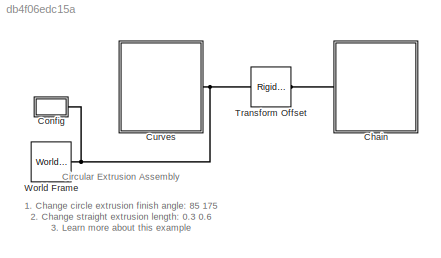
MODEL slx_db4f06edc15a
KIND model
CONFIG AbsTol = auto
CONFIG EnableMultiTasking = on
CONFIG FixedStep = auto
CONFIG MaxStep = auto
CONFIG MinStep = auto
CONFIG RelTol = 1e-3
CONFIG SampleTimeConstraint = Unconstrained
CONFIG Solver = VariableStepAuto
CONFIG SolverName = VariableStepAuto
CONFIG StartTime = 0.0
CONFIG StopTime = 10.0
WORKSPACE source: MATLAB code (in-file)
WORKSPACE circ_or = 0.3
WORKSPACE circ_ir = 0.2
WORKSPACE circ_a1 = 10
WORKSPACE circ_a2 = 85
WORKSPACE circ_arc_rad = 0.25
WORKSPACE circ_arc = 270/2  (= 135)
WORKSPACE circ_density = 7000
WORKSPACE circ_color = [0 0.4 0.6]
WORKSPACE circ_opc = 1
WORKSPACE circ_len = 0.3
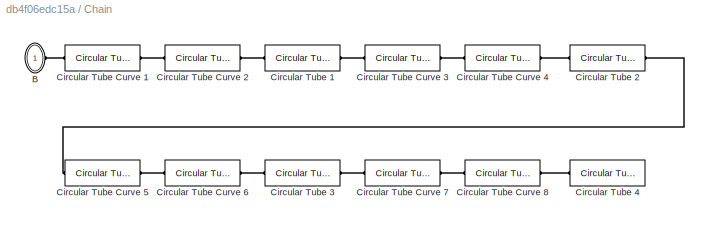
BLOCK [SubSystem] Chain
  Ports = [0, 0, 0, 0, 0, 1]
  RequestExecContextInheritance = off
  Tag = PublishSubsystem
BLOCK [PMIOPort] Chain/B
  Side = Left
BLOCK [Reference] Chain/Circular Tube 1  REF=Multibody_Parts_Lib/Extrusions/Circular Tube
  Ports = [0, 0, 0, 0, 0, 1, 1]
  SourceBlock = Multibody_Parts_Lib/Extrusions/Circular Tube
  SourceProductName = Simscape Multibody Parts Library
  SourceType = Elliptical Tube
BLOCK [Reference] Chain/Circular Tube 2  REF=Multibody_Parts_Lib/Extrusions/Circular Tube
  Ports = [0, 0, 0, 0, 0, 1, 1]
  SourceBlock = Multibody_Parts_Lib/Extrusions/Circular Tube
  SourceProductName = Simscape Multibody Parts Library
  SourceType = Elliptical Tube
BLOCK [Reference] Chain/Circular Tube 3  REF=Multibody_Parts_Lib/Extrusions/Circular Tube
  Ports = [0, 0, 0, 0, 0, 1, 1]
  SourceBlock = Multibody_Parts_Lib/Extrusions/Circular Tube
  SourceProductName = Simscape Multibody Parts Library
  SourceType = Elliptical Tube
BLOCK [Reference] Chain/Circular Tube 4  REF=Multibody_Parts_Lib/Extrusions/Circular Tube
  Ports = [0, 0, 0, 0, 0, 1, 1]
  SourceBlock = Multibody_Parts_Lib/Extrusions/Circular Tube
  SourceProductName = Simscape Multibody Parts Library
  SourceType = Elliptical Tube
BLOCK [Reference] Chain/Circular Tube Curve 1  REF=Multibody_Parts_Lib/Extrusions/Circular Tube Curve
  Ports = [0, 0, 0, 0, 0, 1, 1]
  SourceBlock = Multibody_Parts_Lib/Extrusions/Circular Tube Curve
  SourceProductName = Simscape Multibody Parts Library
  SourceType = Curved Circular Tube
BLOCK [Reference] Chain/Circular Tube Curve 2  REF=Multibody_Parts_Lib/Extrusions/Circular Tube Curve
  Ports = [0, 0, 0, 0, 0, 1, 1]
  SourceBlock = Multibody_Parts_Lib/Extrusions/Circular Tube Curve
  SourceProductName = Simscape Multibody Parts Library
  SourceType = Curved Circular Tube
BLOCK [Reference] Chain/Circular Tube Curve 3  REF=Multibody_Parts_Lib/Extrusions/Circular Tube Curve
  Ports = [0, 0, 0, 0, 0, 1, 1]
  SourceBlock = Multibody_Parts_Lib/Extrusions/Circular Tube Curve
  SourceProductName = Simscape Multibody Parts Library
  SourceType = Curved Circular Tube
BLOCK [Reference] Chain/Circular Tube Curve 4  REF=Multibody_Parts_Lib/Extrusions/Circular Tube Curve
  Ports = [0, 0, 0, 0, 0, 1, 1]
  SourceBlock = Multibody_Parts_Lib/Extrusions/Circular Tube Curve
  SourceProductName = Simscape Multibody Parts Library
  SourceType = Curved Circular Tube
BLOCK [Reference] Chain/Circular Tube Curve 5  REF=Multibody_Parts_Lib/Extrusions/Circular Tube Curve
  Ports = [0, 0, 0, 0, 0, 1, 1]
  SourceBlock = Multibody_Parts_Lib/Extrusions/Circular Tube Curve
  SourceProductName = Simscape Multibody Parts Library
  SourceType = Curved Circular Tube
BLOCK [Reference] Chain/Circular Tube Curve 6  REF=Multibody_Parts_Lib/Extrusions/Circular Tube Curve
  Ports = [0, 0, 0, 0, 0, 1, 1]
  SourceBlock = Multibody_Parts_Lib/Extrusions/Circular Tube Curve
  SourceProductName = Simscape Multibody Parts Library
  SourceType = Curved Circular Tube
BLOCK [Reference] Chain/Circular Tube Curve 7  REF=Multibody_Parts_Lib/Extrusions/Circular Tube Curve
  Ports = [0, 0, 0, 0, 0, 1, 1]
  SourceBlock = Multibody_Parts_Lib/Extrusions/Circular Tube Curve
  SourceProductName = Simscape Multibody Parts Library
  SourceType = Curved Circular Tube
BLOCK [Reference] Chain/Circular Tube Curve 8  REF=Multibody_Parts_Lib/Extrusions/Circular Tube Curve
  Ports = [0, 0, 0, 0, 0, 1, 1]
  SourceBlock = Multibody_Parts_Lib/Extrusions/Circular Tube Curve
  SourceProductName = Simscape Multibody Parts Library
  SourceType = Curved Circular Tube
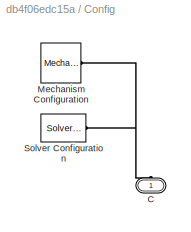
BLOCK [SubSystem] Config
  Ports = [0, 0, 0, 0, 0, 1]
  RequestExecContextInheritance = off
BLOCK [PMIOPort] Config/C
  Side = Left
BLOCK [Reference] Config/Mechanism Configuration  REF=sm_lib/Utilities/Mechanism
Configuration
  Ports = [0, 0, 0, 0, 0, 0, 1]
  SourceBlock = sm_lib/Utilities/Mechanism\nConfiguration
  SourceProductBaseCode = MS
  SourceProductName = Simscape Multibody
  SourceType = Mechanism\nConfiguration
BLOCK [Reference] Config/Solver Configuration  REF=nesl_utility/Solver
Configuration
  Ports = [0, 0, 0, 0, 0, 0, 1]
  SourceBlock = nesl_utility/Solver\nConfiguration
  SourceProductBaseCode = SS
  SourceProductName = Simscape
  SourceType = Solver\nConfiguration
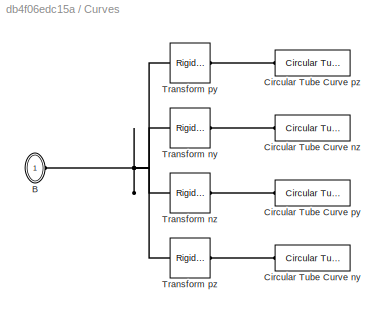
BLOCK [SubSystem] Curves
  Ports = [0, 0, 0, 0, 0, 1]
  RequestExecContextInheritance = off
  Tag = PublishSubsystem
BLOCK [PMIOPort] Curves/B
  Side = Left
BLOCK [Reference] Curves/Circular Tube Curve ny  REF=Multibody_Parts_Lib/Extrusions/Circular Tube Curve
  Ports = [0, 0, 0, 0, 0, 1, 1]
  SourceBlock = Multibody_Parts_Lib/Extrusions/Circular Tube Curve
  SourceProductName = Simscape Multibody Parts Library
  SourceType = Curved Circular Tube
BLOCK [Reference] Curves/Circular Tube Curve nz  REF=Multibody_Parts_Lib/Extrusions/Circular Tube Curve
  Ports = [0, 0, 0, 0, 0, 1, 1]
  SourceBlock = Multibody_Parts_Lib/Extrusions/Circular Tube Curve
  SourceProductName = Simscape Multibody Parts Library
  SourceType = Curved Circular Tube
BLOCK [Reference] Curves/Circular Tube Curve py  REF=Multibody_Parts_Lib/Extrusions/Circular Tube Curve
  Ports = [0, 0, 0, 0, 0, 1, 1]
  SourceBlock = Multibody_Parts_Lib/Extrusions/Circular Tube Curve
  SourceProductName = Simscape Multibody Parts Library
  SourceType = Curved Circular Tube
BLOCK [Reference] Curves/Circular Tube Curve pz  REF=Multibody_Parts_Lib/Extrusions/Circular Tube Curve
  Ports = [0, 0, 0, 0, 0, 1, 1]
  SourceBlock = Multibody_Parts_Lib/Extrusions/Circular Tube Curve
  SourceProductName = Simscape Multibody Parts Library
  SourceType = Curved Circular Tube
BLOCK [Reference] Curves/Transform ny  REF=sm_lib/Frames and
Transforms/Rigid
Transform
  Ports = [0, 0, 0, 0, 0, 1, 1]
  SourceBlock = sm_lib/Frames and\nTransforms/Rigid\nTransform
  SourceProductBaseCode = MS
  SourceProductName = Simscape Multibody
  SourceType = Rigid\nTransform
BLOCK [Reference] Curves/Transform nz  REF=sm_lib/Frames and
Transforms/Rigid
Transform
  Ports = [0, 0, 0, 0, 0, 1, 1]
  SourceBlock = sm_lib/Frames and\nTransforms/Rigid\nTransform
  SourceProductBaseCode = MS
  SourceProductName = Simscape Multibody
  SourceType = Rigid\nTransform
BLOCK [Reference] Curves/Transform py  REF=sm_lib/Frames and
Transforms/Rigid
Transform
  Ports = [0, 0, 0, 0, 0, 1, 1]
  SourceBlock = sm_lib/Frames and\nTransforms/Rigid\nTransform
  SourceProductBaseCode = MS
  SourceProductName = Simscape Multibody
  SourceType = Rigid\nTransform
BLOCK [Reference] Curves/Transform pz  REF=sm_lib/Frames and
Transforms/Rigid
Transform
  Ports = [0, 0, 0, 0, 0, 1, 1]
  SourceBlock = sm_lib/Frames and\nTransforms/Rigid\nTransform
  SourceProductBaseCode = MS
  SourceProductName = Simscape Multibody
  SourceType = Rigid\nTransform
BLOCK [Reference] Transform Offset  REF=sm_lib/Frames and
Transforms/Rigid
Transform
  Ports = [0, 0, 0, 0, 0, 1, 1]
  SourceBlock = sm_lib/Frames and\nTransforms/Rigid\nTransform
  SourceProductBaseCode = MS
  SourceProductName = Simscape Multibody
  SourceType = Rigid\nTransform
BLOCK [Reference] World Frame  REF=sm_lib/Frames and
Transforms/World Frame
  Ports = [0, 0, 0, 0, 0, 0, 1]
  SourceBlock = sm_lib/Frames and\nTransforms/World Frame
  SourceProductBaseCode = MS
  SourceProductName = Simscape Multibody
  SourceType = World Frame
ANNOTATION (root): 1. Change circle extrusion finish angle: 85 175 2. Change straight extrusion length: 0.3 0.6 3. Learn more about this example
ANNOTATION (root): Circular Extrusion Assembly
PLINE Chain/B:RConn1 -- Chain/Circular Tube Curve 1:LConn1
PLINE Chain/Circular Tube 1:LConn1 -- Chain/Circular Tube Curve 2:RConn1
PLINE Chain/Circular Tube 1:RConn1 -- Chain/Circular Tube Curve 3:LConn1
PLINE Chain/Circular Tube 2:LConn1 -- Chain/Circular Tube Curve 4:RConn1
PLINE Chain/Circular Tube 2:RConn1 -- Chain/Circular Tube Curve 5:LConn1
PLINE Chain/Circular Tube 3:LConn1 -- Chain/Circular Tube Curve 6:RConn1
PLINE Chain/Circular Tube 3:RConn1 -- Chain/Circular Tube Curve 7:LConn1
PLINE Chain/Circular Tube 4:LConn1 -- Chain/Circular Tube Curve 8:RConn1
PLINE Chain/Circular Tube Curve 1:RConn1 -- Chain/Circular Tube Curve 2:LConn1
PLINE Chain/Circular Tube Curve 3:RConn1 -- Chain/Circular Tube Curve 4:LConn1
PLINE Chain/Circular Tube Curve 5:RConn1 -- Chain/Circular Tube Curve 6:LConn1
PLINE Chain/Circular Tube Curve 7:RConn1 -- Chain/Circular Tube Curve 8:LConn1
PLINE Chain:LConn1 -- Transform Offset:RConn1
PNET net1: Config/C:RConn1 -- Config/Mechanism Configuration:RConn1 -- Config/Solver Configuration:RConn1
PNET net2: Config:LConn1 -- Curves:LConn1 -- Transform Offset:LConn1 -- World Frame:RConn1
PNET net3: Curves/B:RConn1 -- Curves/Transform ny:LConn1 -- Curves/Transform nz:LConn1 -- Curves/Transform py:LConn1 -- Curves/Transform pz:LConn1
PLINE Curves/Circular Tube Curve ny:LConn1 -- Curves/Transform pz:RConn1
PLINE Curves/Circular Tube Curve nz:LConn1 -- Curves/Transform ny:RConn1
PLINE Curves/Circular Tube Curve py:LConn1 -- Curves/Transform nz:RConn1
PLINE Curves/Circular Tube Curve pz:LConn1 -- Curves/Transform py:RConn1
note: PNET lines group multi-terminal physical nets as a canonical sorted terminal list (undirected conserving connections); 2-terminal nets keep the pairwise PLINE form
